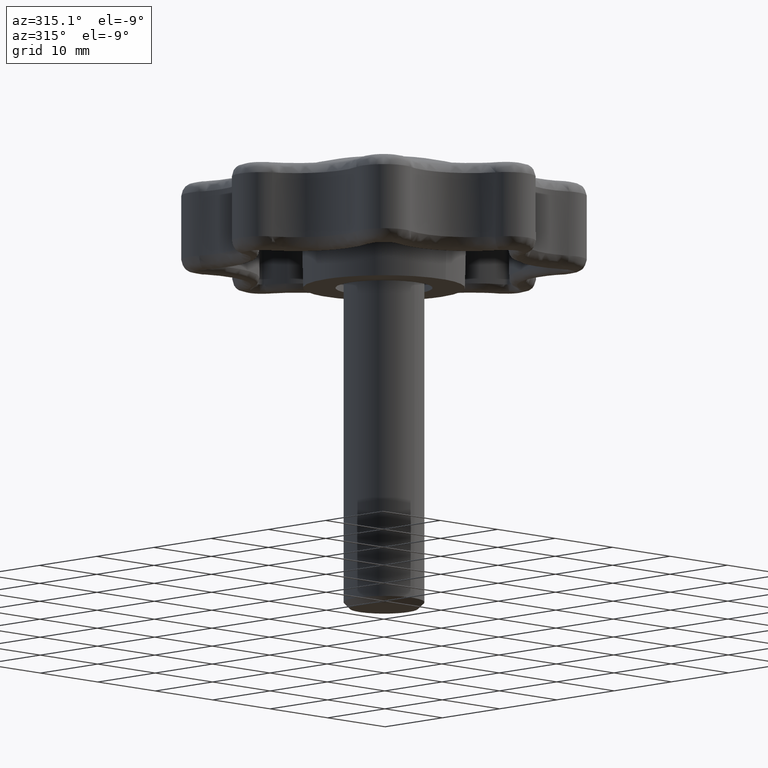
[diagram: clean part render]
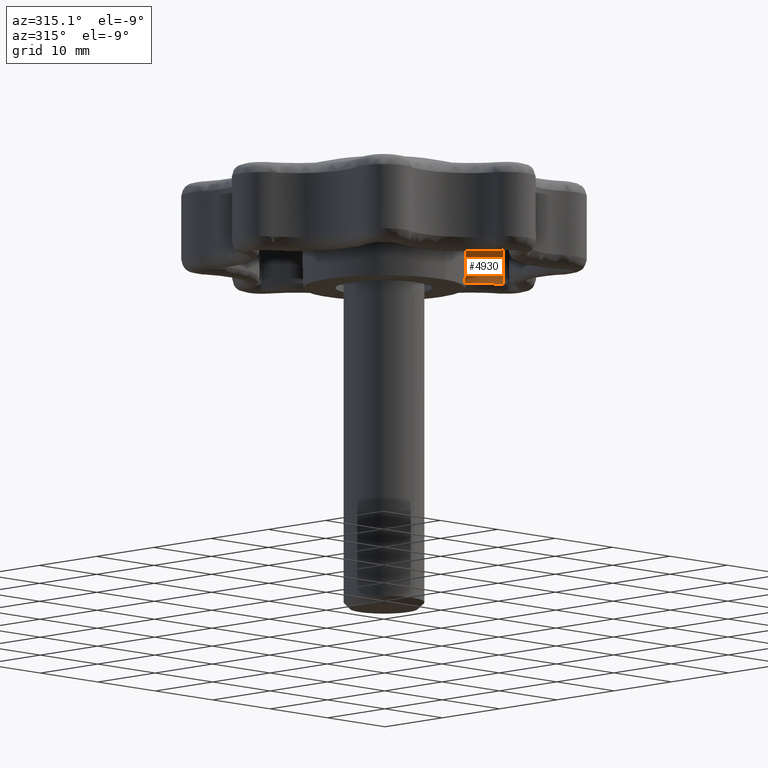
[diagram: same view with one face highlighted and labeled with its STEP entity id]
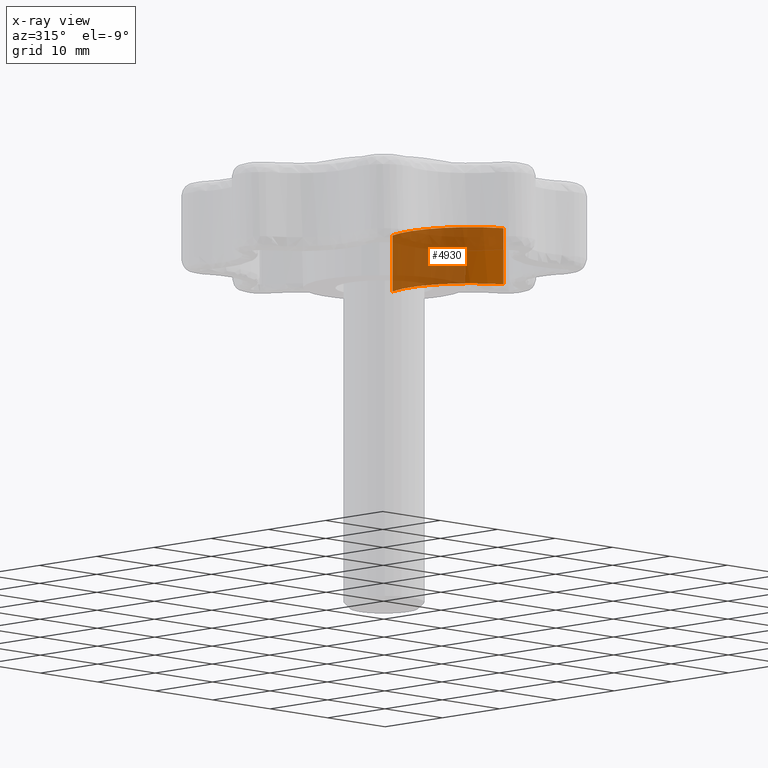
[diagram: x-ray of the same camera — body ghosted, the highlighted face saturated]
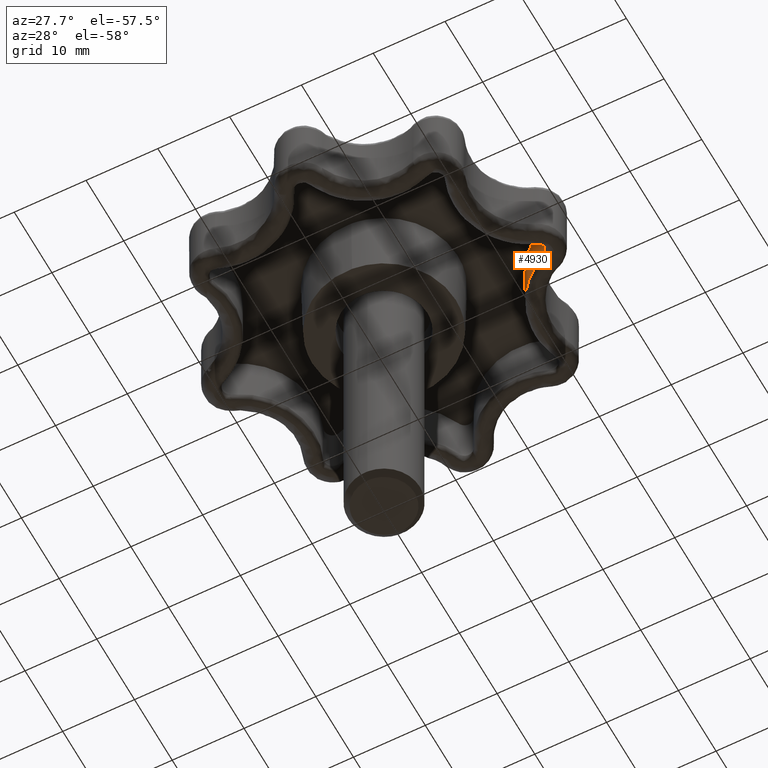
[diagram: same view with one face highlighted and labeled with its STEP entity id]
A machine part, auxiliary view. The second image highlights one B-rep face of the part: STEP entity #4930.
The next image is the same camera in x-ray: the body ghosted, the highlighted face saturated — about 80% of this face is hidden behind the body in this view.
A second angle (auxiliary view) of the same face is appended — the face is thin or edge-on in the first view.
In plain terms, the highlighted face is a freeform B-spline surface patch.
Its self-contained STEP definition (entity closure, byte-faithful):
#2141=CARTESIAN_POINT('',(16.153289021426399,14.697876070859920,3.000000000000115));
#2142=VERTEX_POINT('',#2141);
#2283=CARTESIAN_POINT('',(21.815071715214248,1.029133007694378,3.000000000000115));
#2284=VERTEX_POINT('',#2283);
#2300=CARTESIAN_POINT('',(16.153289021426399,14.697876070859920,3.000000000000115));
#2301=CARTESIAN_POINT('',(12.199521522253114,5.053205627042298,3.000000000000116));
#2302=CARTESIAN_POINT('',(21.815071715214248,1.029133007694378,3.000000000000115));
#2310=(BOUNDED_CURVE()B_SPLINE_CURVE(2,(#2300,#2301,#2302),.UNSPECIFIED.,.F.,.U.)CURVE()GEOMETRIC_REPRESENTATION_ITEM()QUASI_UNIFORM_CURVE()RATIONAL_B_SPLINE_CURVE((1.0,0.709683141114679,1.0))REPRESENTATION_ITEM(''));
#2311=EDGE_CURVE('',#2142,#2284,#2310,.T.);
#4605=CARTESIAN_POINT('',(16.153289021426399,14.697876070859920,10.000000000000121));
#4606=VERTEX_POINT('',#4605);
#4622=CARTESIAN_POINT('',(21.815071715214248,1.029133007694378,10.000000000000121));
#4623=VERTEX_POINT('',#4622);
#4624=CARTESIAN_POINT('',(21.815071715214248,1.029133007694378,10.000000000000121));
#4625=CARTESIAN_POINT('',(12.199521522253114,5.053205627042294,10.000000000000121));
#4626=CARTESIAN_POINT('',(16.153289021426399,14.697876070859920,10.000000000000121));
#4634=(BOUNDED_CURVE()B_SPLINE_CURVE(2,(#4624,#4625,#4626),.UNSPECIFIED.,.F.,.U.)CURVE()GEOMETRIC_REPRESENTATION_ITEM()QUASI_UNIFORM_CURVE()RATIONAL_B_SPLINE_CURVE((1.0,0.709683141114679,1.0))REPRESENTATION_ITEM(''));
#4635=EDGE_CURVE('',#4623,#4606,#4634,.T.);
#4895=CARTESIAN_POINT('',(21.815071715214248,1.029133007694378,10.000000000000121));
#4896=CARTESIAN_POINT('',(21.815071715214248,1.029133007694378,3.000000000000115));
#4897=QUASI_UNIFORM_CURVE('',1,(#4895,#4896),.UNSPECIFIED.,.F.,.U.);
#4898=EDGE_CURVE('',#4623,#2284,#4897,.T.);
#4906=CARTESIAN_POINT('',(16.336262300651939,15.117861736928250,10.175000000000120));
#4907=CARTESIAN_POINT('',(16.336262300651939,15.117861736928250,2.820625000000114));
#4908=CARTESIAN_POINT('',(11.531531367374168,4.715108922620084,10.175000000000125));
#4909=CARTESIAN_POINT('',(11.531531367374168,4.715108922620084,2.820625000000114));
#4910=CARTESIAN_POINT('',(22.313458459739419,0.835321089282681,10.175000000000120));
#4911=CARTESIAN_POINT('',(22.313458459739419,0.835321089282681,2.820625000000114));
#4919=(BOUNDED_SURFACE()B_SPLINE_SURFACE(1,2,((#4906,#4908,#4910),(#4907,#4909,#4911)),.UNSPECIFIED.,.F.,.F.,.U.)B_SPLINE_SURFACE_WITH_KNOTS((2,2),(3,3),(0.0,7.354375000000009),(0.0,18.480442297456982),.UNSPECIFIED.)GEOMETRIC_REPRESENTATION_ITEM()RATIONAL_B_SPLINE_SURFACE(((1.0,0.675590207615661,1.0),(1.0,0.675590207615661,1.0)))REPRESENTATION_ITEM('')SURFACE());
#4920=CARTESIAN_POINT('',(16.153289021426399,14.697876070859920,10.000000000000121));
#4921=CARTESIAN_POINT('',(16.153289021426399,14.697876070859920,3.000000000000115));
#4922=QUASI_UNIFORM_CURVE('',1,(#4920,#4921),.UNSPECIFIED.,.F.,.U.);
#4923=EDGE_CURVE('',#4606,#2142,#4922,.T.);
#4924=ORIENTED_EDGE('',*,*,#4923,.T.);
#4925=ORIENTED_EDGE('',*,*,#2311,.T.);
#4926=ORIENTED_EDGE('',*,*,#4898,.F.);
#4927=ORIENTED_EDGE('',*,*,#4635,.T.);
#4928=EDGE_LOOP('',(#4924,#4925,#4926,#4927));
#4929=FACE_OUTER_BOUND('',#4928,.T.);
#4930=ADVANCED_FACE('',(#4929),#4919,.T.);